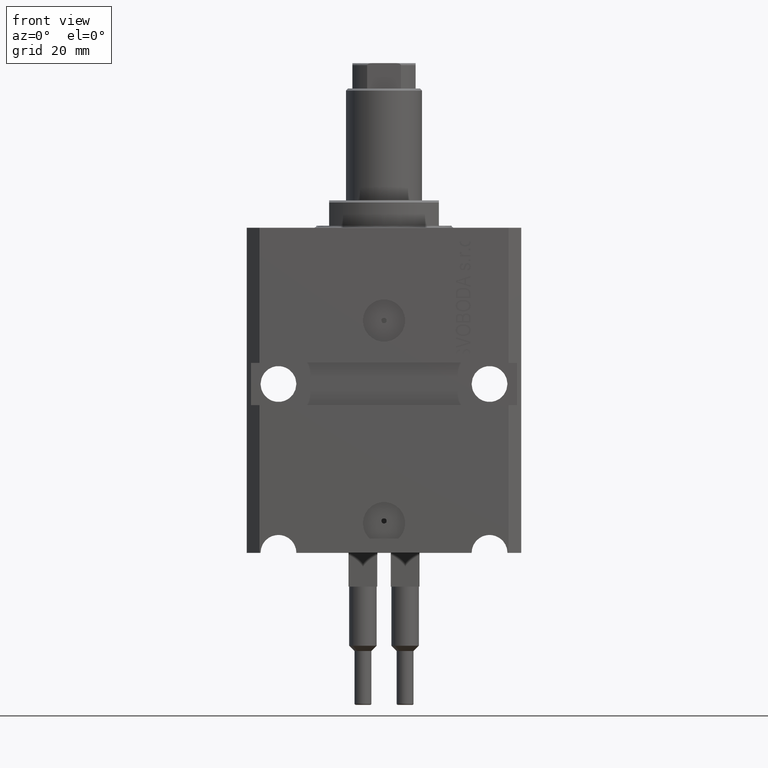
[diagram: clean part render]
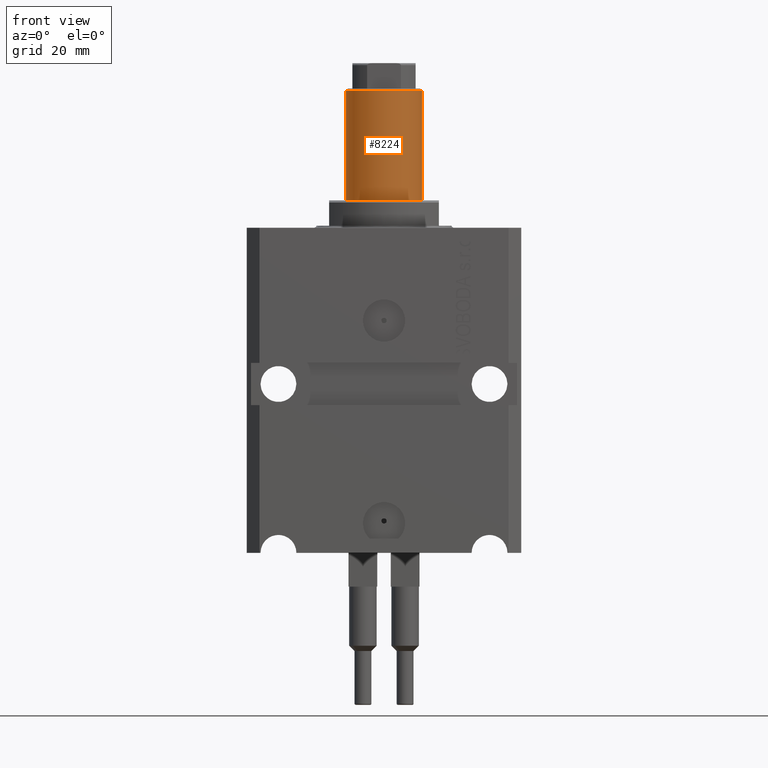
[diagram: same view with one face highlighted and labeled with its STEP entity id]
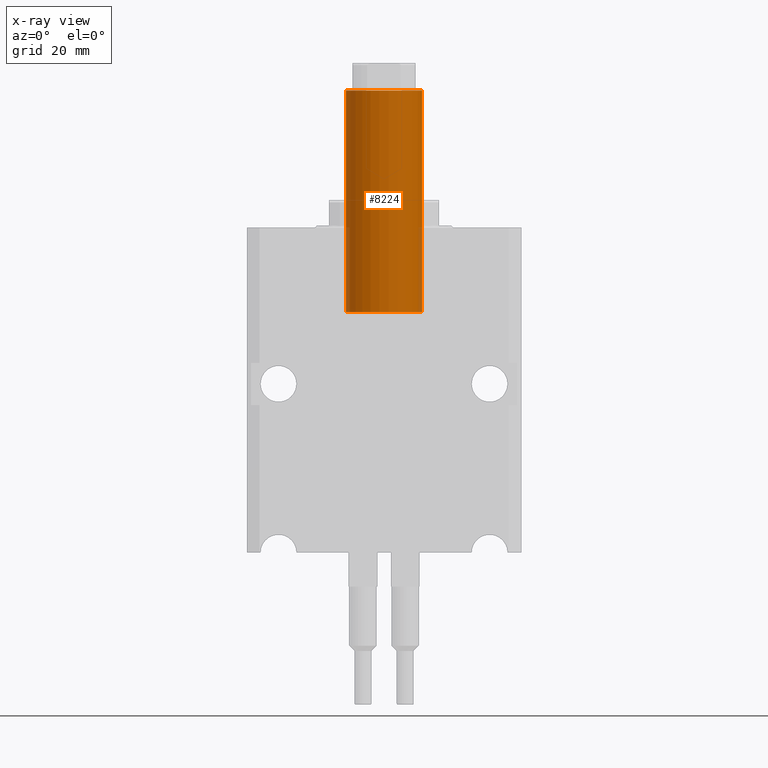
[diagram: x-ray of the same camera — body ghosted, the highlighted face saturated]
A machine part, front view. The second image highlights one B-rep face of the part: STEP entity #8224.
The next image is the same camera in x-ray: the body ghosted, the highlighted face saturated — about 4% of this face is hidden behind the body in this view.
In plain terms, the highlighted cylindrical surface (partial cylindrical patch) has radius 9 mm, axis along (-0, -0, -1).
Its self-contained STEP definition (entity closure, byte-faithful):
#518 = AXIS2_PLACEMENT_3D ( 'NONE', #40848, #18882, #44047 ) ;
#628 = CARTESIAN_POINT ( 'NONE',  ( 9.000000000000000000, 1.102182119232617714E-15, 78.00000000000000000 ) ) ;
#1257 = EDGE_CURVE ( 'NONE', #28377, #44922, #43366, .T. ) ;
#2261 = ORIENTED_EDGE ( 'NONE', *, *, #6673, .F. ) ;
#2333 = DIRECTION ( 'NONE',  ( -0.000000000000000000, -0.000000000000000000, -1.000000000000000000 ) ) ;
#4817 = CARTESIAN_POINT ( 'NONE',  ( -9.000000000000000000, 0.000000000000000000, 25.00000000000000000 ) ) ;
#4824 = VECTOR ( 'NONE', #7716, 1000.000000000000000 ) ;
#6673 = EDGE_CURVE ( 'NONE', #24708, #45081, #38913, .T. ) ;
#7648 = DIRECTION ( 'NONE',  ( 1.000000000000000000, 0.000000000000000000, 0.000000000000000000 ) ) ;
#7716 = DIRECTION ( 'NONE',  ( -0.000000000000000000, -0.000000000000000000, -1.000000000000000000 ) ) ;
#8224 = ADVANCED_FACE ( 'NONE', ( #18994 ), #32978, .T. ) ;
#9312 = ORIENTED_EDGE ( 'NONE', *, *, #15806, .T. ) ;
#12759 = DIRECTION ( 'NONE',  ( -0.000000000000000000, -0.000000000000000000, -1.000000000000000000 ) ) ;
#13652 = CIRCLE ( 'NONE', #518, 9.000000000000000000 ) ;
#14630 = CARTESIAN_POINT ( 'NONE',  ( 9.000000000000000000, 1.102182119232617714E-15, 25.00000000000000000 ) ) ;
#15429 = CARTESIAN_POINT ( 'NONE',  ( -9.000000000000000000, 0.000000000000000000, 78.00000000000000000 ) ) ;
#15806 = EDGE_CURVE ( 'NONE', #44922, #45081, #33919, .T. ) ;
#15864 = AXIS2_PLACEMENT_3D ( 'NONE', #22644, #12759, #37985 ) ;
#16446 = CARTESIAN_POINT ( 'NONE',  ( -9.000000000000000000, 0.000000000000000000, 77.49999999999998579 ) ) ;
#17101 = AXIS2_PLACEMENT_3D ( 'NONE', #25074, #39065, #7648 ) ;
#18475 = EDGE_LOOP ( 'NONE', ( #2261, #43616, #22234, #9312 ) ) ;
#18882 = DIRECTION ( 'NONE',  ( 0.000000000000000000, 0.000000000000000000, -1.000000000000000000 ) ) ;
#18994 = FACE_OUTER_BOUND ( 'NONE', #18475, .T. ) ;
#22234 = ORIENTED_EDGE ( 'NONE', *, *, #1257, .T. ) ;
#22644 = CARTESIAN_POINT ( 'NONE',  ( 0.000000000000000000, 0.000000000000000000, 78.00000000000000000 ) ) ;
#23855 = EDGE_CURVE ( 'NONE', #24708, #28377, #13652, .T. ) ;
#24708 = VERTEX_POINT ( 'NONE', #28522 ) ;
#25074 = CARTESIAN_POINT ( 'NONE',  ( 0.000000000000000000, 0.000000000000000000, 25.00000000000000000 ) ) ;
#28377 = VERTEX_POINT ( 'NONE', #16446 ) ;
#28522 = CARTESIAN_POINT ( 'NONE',  ( 9.000000000000000000, 1.102182119232617714E-15, 77.49999999999998579 ) ) ;
#28823 = VECTOR ( 'NONE', #2333, 1000.000000000000000 ) ;
#32978 = CYLINDRICAL_SURFACE ( 'NONE', #15864, 9.000000000000000000 ) ;
#33919 = CIRCLE ( 'NONE', #17101, 9.000000000000000000 ) ;
#37985 = DIRECTION ( 'NONE',  ( -1.000000000000000000, 0.000000000000000000, 0.000000000000000000 ) ) ;
#38913 = LINE ( 'NONE', #628, #4824 ) ;
#39065 = DIRECTION ( 'NONE',  ( 0.000000000000000000, 0.000000000000000000, 1.000000000000000000 ) ) ;
#40848 = CARTESIAN_POINT ( 'NONE',  ( 0.000000000000000000, 0.000000000000000000, 77.49999999999998579 ) ) ;
#43366 = LINE ( 'NONE', #15429, #28823 ) ;
#43616 = ORIENTED_EDGE ( 'NONE', *, *, #23855, .T. ) ;
#44047 = DIRECTION ( 'NONE',  ( 1.000000000000000000, 0.000000000000000000, 0.000000000000000000 ) ) ;
#44922 = VERTEX_POINT ( 'NONE', #4817 ) ;
#45081 = VERTEX_POINT ( 'NONE', #14630 ) ;